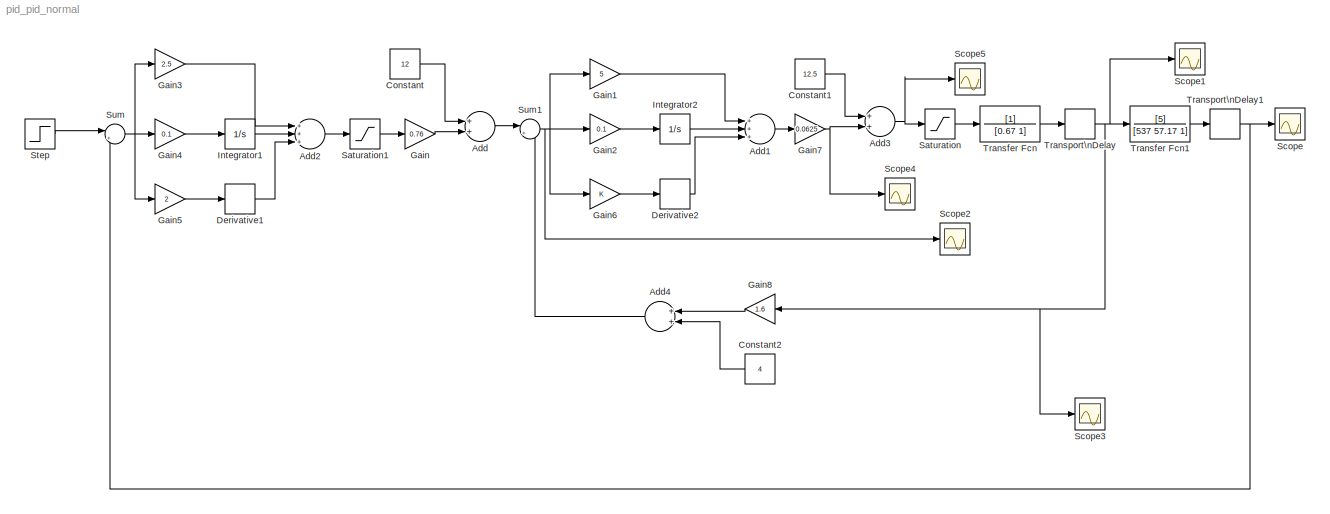
MODEL pid_pid_normal
KIND model
BLOCK [Sum] Add
  InputSameDT = off
  OutDataTypeStr = Inherit: Inherit via internal rule
  Ports = [2, 1]
  SID = 12
  SaturateOnIntegerOverflow = off
BLOCK [Sum] Add1
  InputSameDT = off
  Inputs = +++
  OutDataTypeStr = Inherit: Inherit via internal rule
  Ports = [3, 1]
  SID = 28
  SaturateOnIntegerOverflow = off
BLOCK [Sum] Add2
  InputSameDT = off
  Inputs = +++
  OutDataTypeStr = Inherit: Inherit via internal rule
  Ports = [3, 1]
  SID = 3
  SaturateOnIntegerOverflow = off
BLOCK [Sum] Add3
  InputSameDT = off
  OutDataTypeStr = Inherit: Inherit via internal rule
  Ports = [2, 1]
  SID = 37
  SaturateOnIntegerOverflow = off
BLOCK [Sum] Add4
  InputSameDT = off
  OutDataTypeStr = Inherit: Inherit via internal rule
  Ports = [2, 1]
  SID = 44
  SaturateOnIntegerOverflow = off
BLOCK [Constant] Constant
  SID = 11
  Value = 12
BLOCK [Constant] Constant1
  SID = 36
  Value = 12.5
BLOCK [Constant] Constant2
  SID = 46
  Value = 4
BLOCK [Derivative] Derivative1
  SID = 4
BLOCK [Derivative] Derivative2
  SID = 29
BLOCK [Gain] Gain
  Gain = 0.76
  OutDataTypeStr = Inherit: Inherit via internal rule
  ParamDataTypeStr = Inherit: Inherit via internal rule
  SID = 10
  SaturateOnIntegerOverflow = off
BLOCK [Gain] Gain1
  Gain = 5
  OutDataTypeStr = Inherit: Inherit via internal rule
  ParamDataTypeStr = Inherit: Inherit via internal rule
  SID = 30
  SaturateOnIntegerOverflow = off
BLOCK [Gain] Gain2
  Gain = 0.1
  OutDataTypeStr = Inherit: Inherit via internal rule
  ParamDataTypeStr = Inherit: Inherit via internal rule
  SID = 31
  SaturateOnIntegerOverflow = off
BLOCK [Gain] Gain3
  Gain = 2.5
  OutDataTypeStr = Inherit: Inherit via internal rule
  ParamDataTypeStr = Inherit: Inherit via internal rule
  SID = 5
  SaturateOnIntegerOverflow = off
BLOCK [Gain] Gain4
  Gain = 0.1
  OutDataTypeStr = Inherit: Inherit via internal rule
  ParamDataTypeStr = Inherit: Inherit via internal rule
  SID = 6
  SaturateOnIntegerOverflow = off
BLOCK [Gain] Gain5
  Gain = 2
  OutDataTypeStr = Inherit: Inherit via internal rule
  ParamDataTypeStr = Inherit: Inherit via internal rule
  SID = 7
  SaturateOnIntegerOverflow = off
BLOCK [Gain] Gain6
  OutDataTypeStr = Inherit: Inherit via internal rule
  ParamDataTypeStr = Inherit: Inherit via internal rule
  SID = 32
  SaturateOnIntegerOverflow = off
BLOCK [Gain] Gain7
  Gain = 0.0625
  OutDataTypeStr = Inherit: Inherit via internal rule
  ParamDataTypeStr = Inherit: Inherit via internal rule
  SID = 35
  SaturateOnIntegerOverflow = off
BLOCK [Gain] Gain8
  Gain = 1.6
  OutDataTypeStr = Inherit: Inherit via internal rule
  ParamDataTypeStr = Inherit: Inherit via internal rule
  SID = 45
  SaturateOnIntegerOverflow = off
BLOCK [Integrator] Integrator1
  Ports = [1, 1]
  SID = 8
BLOCK [Integrator] Integrator2
  Ports = [1, 1]
  SID = 33
BLOCK [Saturate] Saturation
  InputPortMap = u0
  LowerLimit = -10
  Ports = [1, 1]
  SID = 39
  UpperLimit = 10
BLOCK [Saturate] Saturation1
  InputPortMap = u0
  LowerLimit = -50
  Ports = [1, 1]
  SID = 9
  UpperLimit = 50
BLOCK [Scope] Scope
  DataFormat = StructureWithTime
  Floating = off
  NumInputPorts = 1
  Ports = [1]
  SID = 38
  SampleTime = 0
  TimeRange = 500
  YMax = 53.92107
  YMin = 48.78573
BLOCK [Scope] Scope1
  DataFormat = StructureWithTime
  Floating = off
  NumInputPorts = 1
  Ports = [1]
  SID = 47
  SampleTime = 0
  SaveName = ScopeData1
BLOCK [Scope] Scope2
  DataFormat = StructureWithTime
  Floating = off
  NumInputPorts = 1
  Ports = [1]
  SID = 48
  SampleTime = 0
  SaveName = ScopeData2
BLOCK [Scope] Scope3
  DataFormat = StructureWithTime
  Floating = off
  NumInputPorts = 1
  Ports = [1]
  SID = 51
  SampleTime = 0
  SaveName = ScopeData3
BLOCK [Scope] Scope4
  DataFormat = StructureWithTime
  Floating = off
  NumInputPorts = 1
  Ports = [1]
  SID = 53
  SampleTime = 0
  SaveName = ScopeData4
BLOCK [Scope] Scope5
  DataFormat = StructureWithTime
  Floating = off
  NumInputPorts = 1
  Ports = [1]
  SID = 54
  SampleTime = 0
  SaveName = ScopeData5
BLOCK [Step] Step
  After = 50
  SID = 1
  SampleTime = 0
  Time = 0
BLOCK [Sum] Sum
  IconShape = round
  InputSameDT = off
  Inputs = |+-
  OutDataTypeStr = Inherit: Inherit via internal rule
  Ports = [2, 1]
  SID = 2
  SaturateOnIntegerOverflow = off
BLOCK [Sum] Sum1
  IconShape = round
  InputSameDT = off
  Inputs = |+-
  OutDataTypeStr = Inherit: Inherit via internal rule
  Ports = [2, 1]
  SID = 13
  SaturateOnIntegerOverflow = off
BLOCK [TransferFcn] Transfer Fcn
  Denominator = [0.67 1]
  SID = 40
BLOCK [TransferFcn] Transfer Fcn1
  Denominator = [537 57.17 1]
  Numerator = [5]
  SID = 42
BLOCK [TransportDelay] Transport\nDelay
  DelayTime = 0.058
  Ports = [1, 1]
  SID = 41
BLOCK [TransportDelay] Transport\nDelay1
  DelayTime = 11.85
  Ports = [1, 1]
  SID = 43
LINE Add1:1 -> Gain7:1
LINE Add2:1 -> Saturation1:1
NET Add3:1 -> Saturation:1, Scope5:1
LINE Add4:1 -> Sum1:2
LINE Add:1 -> Sum1:1
LINE Constant1:1 -> Add3:1
LINE Constant2:1 -> Add4:2
LINE Constant:1 -> Add:1
LINE Derivative1:1 -> Add2:3
LINE Derivative2:1 -> Add1:3
LINE Gain1:1 -> Add1:1
LINE Gain2:1 -> Integrator2:1
LINE Gain3:1 -> Add2:1
LINE Gain4:1 -> Integrator1:1
LINE Gain5:1 -> Derivative1:1
LINE Gain6:1 -> Derivative2:1
NET Gain7:1 -> Add3:2, Scope4:1
LINE Gain8:1 -> Add4:1
LINE Gain:1 -> Add:2
LINE Integrator1:1 -> Add2:2
LINE Integrator2:1 -> Add1:2
LINE Saturation1:1 -> Gain:1
LINE Saturation:1 -> Transfer Fcn:1
LINE Step:1 -> Sum:1
NET Sum1:1 -> Gain1:1, Gain2:1, Gain6:1, Scope2:1
NET Sum:1 -> Gain3:1, Gain4:1, Gain5:1
LINE Transfer Fcn1:1 -> Transport\nDelay1:1
LINE Transfer Fcn:1 -> Transport\nDelay:1
NET Transport\nDelay1:1 -> Scope:1, Sum:2
NET Transport\nDelay:1 -> Gain8:1, Scope1:1, Scope3:1, Transfer Fcn1:1
note: NET lines group one-source signal fan-out (src -> all destinations, sorted); 1:1 wires keep LINE
